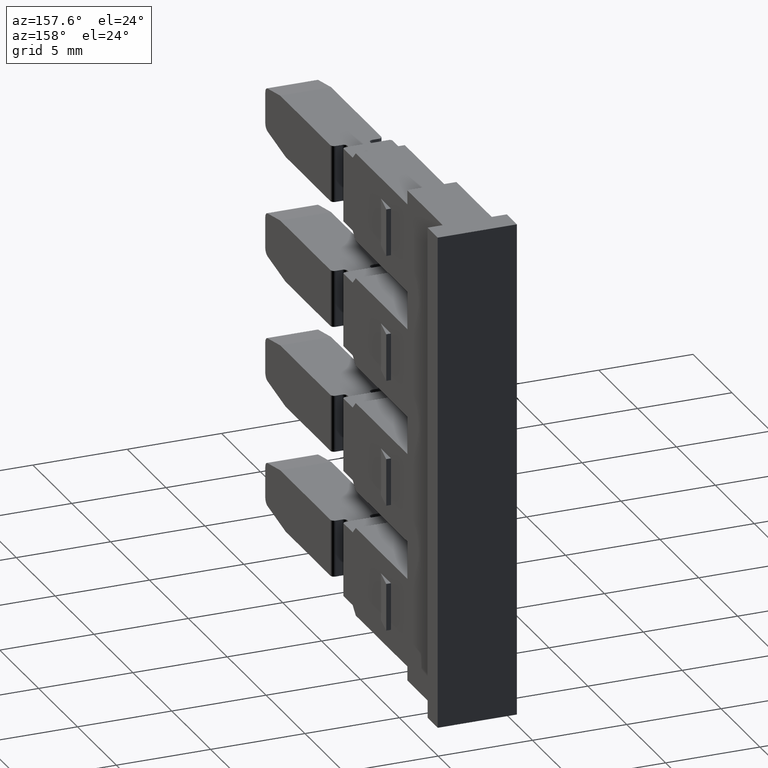
[diagram: clean part render]
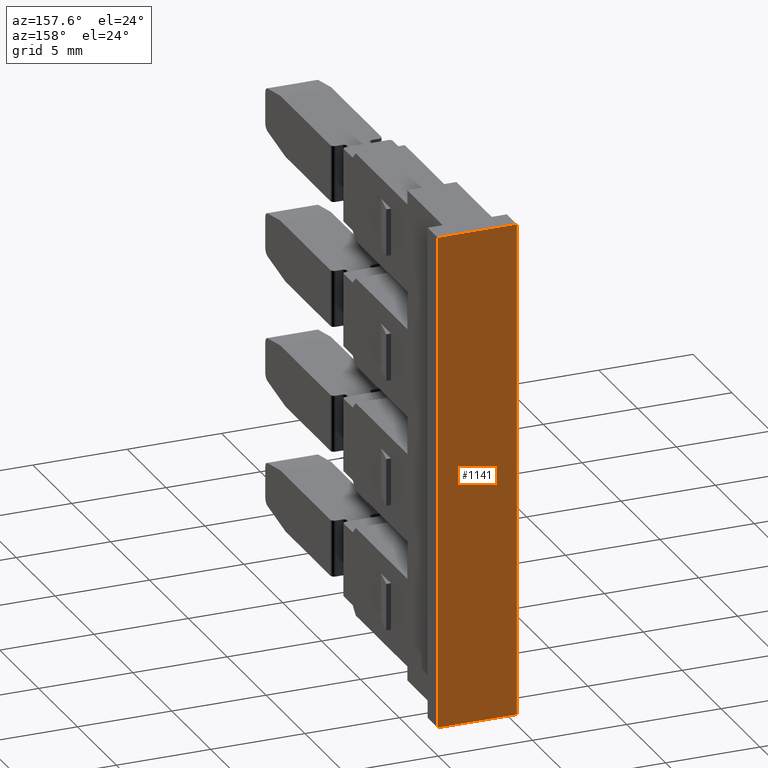
[diagram: same view with one face highlighted and labeled with its STEP entity id]
A machine part, auxiliary view. The second image highlights one B-rep face of the part: STEP entity #1141.
In plain terms, the highlighted planar face has unit normal (-0, -1, -0).
Its self-contained STEP definition (entity closure, byte-faithful):
#82 = VECTOR ( 'NONE', #2372, 1000.000000000000000 ) ;
#172 = VECTOR ( 'NONE', #2658, 1000.000000000000000 ) ;
#190 = VECTOR ( 'NONE', #2712, 1000.000000000000200 ) ;
#206 = VECTOR ( 'NONE', #2605, 1000.000000000000000 ) ;
#561 = AXIS2_PLACEMENT_3D ( 'NONE', #3991, #3969, #3955 ) ;
#753 = EDGE_CURVE ( 'NONE', #1697, #1682, #2326, .T. ) ;
#835 = EDGE_CURVE ( 'NONE', #1761, #1682, #2631, .T. ) ;
#843 = EDGE_CURVE ( 'NONE', #1761, #1791, #2616, .T. ) ;
#869 = EDGE_CURVE ( 'NONE', #1697, #1791, #2686, .T. ) ;
#1141 = ADVANCED_FACE ( 'NONE', ( #3975 ), #3957, .F. ) ;
#1682 = VERTEX_POINT ( 'NONE', #4762 ) ;
#1697 = VERTEX_POINT ( 'NONE', #4729 ) ;
#1761 = VERTEX_POINT ( 'NONE', #4808 ) ;
#1791 = VERTEX_POINT ( 'NONE', #4892 ) ;
#1920 = EDGE_LOOP ( 'NONE', ( #2806, #2818, #2809, #2857 ) ) ;
#2326 = LINE ( 'NONE', #2395, #82 ) ;
#2372 = DIRECTION ( 'NONE',  ( -5.379506530252374700E-033, -5.672277992797063800E-028, 1.000000000000000000 ) ) ;
#2395 = CARTESIAN_POINT ( 'NONE',  ( 1394.182440319829500, 1077.957091196377200, 63.60600222243470400 ) ) ;
#2599 = CARTESIAN_POINT ( 'NONE',  ( 1394.182440319829500, 1077.957091196374900, 9.800000000002389900 ) ) ;
#2605 = DIRECTION ( 'NONE',  ( 0.9999999999550282000, -9.483855921954774300E-006, 1.714874837315600700E-015 ) ) ;
#2616 = LINE ( 'NONE', #2651, #172 ) ;
#2631 = LINE ( 'NONE', #2599, #206 ) ;
#2651 = CARTESIAN_POINT ( 'NONE',  ( 1389.982440319639900, 1077.957131028572100, 63.60600222243470400 ) ) ;
#2658 = DIRECTION ( 'NONE',  ( -5.379506506941585200E-033, 5.672277993817434100E-028, -1.000000000000000000 ) ) ;
#2686 = LINE ( 'NONE', #2688, #190 ) ;
#2688 = CARTESIAN_POINT ( 'NONE',  ( 1394.082440319833900, 1077.957092144756600, -16.49999999994241400 ) ) ;
#2712 = DIRECTION ( 'NONE',  ( -0.9999999999550282000, 9.483856143999501200E-006, -1.734723475820503000E-015 ) ) ;
#2806 = ORIENTED_EDGE ( 'NONE', *, *, #835, .T. ) ;
#2809 = ORIENTED_EDGE ( 'NONE', *, *, #869, .T. ) ;
#2818 = ORIENTED_EDGE ( 'NONE', *, *, #753, .F. ) ;
#2857 = ORIENTED_EDGE ( 'NONE', *, *, #843, .F. ) ;
#3955 = DIRECTION ( 'NONE',  ( 0.9999999999550282000, -9.483855916345691600E-006, 0.0000000000000000000 ) ) ;
#3957 = PLANE ( 'NONE',  #561 ) ;
#3969 = DIRECTION ( 'NONE',  ( -9.483855916345693300E-006, -0.9999999999550283100, -5.672277993052155700E-028 ) ) ;
#3975 = FACE_OUTER_BOUND ( 'NONE', #1920, .T. ) ;
#3991 = CARTESIAN_POINT ( 'NONE',  ( 1388.404219510060100, 1077.957145996190800, 63.60600222243470400 ) ) ;
#4729 = CARTESIAN_POINT ( 'NONE',  ( 1394.182440319829500, 1077.957091196371000, -16.49999999994241400 ) ) ;
#4762 = CARTESIAN_POINT ( 'NONE',  ( 1394.182440319829500, 1077.957091196374900, 9.800000000002389900 ) ) ;
#4808 = CARTESIAN_POINT ( 'NONE',  ( 1389.982440319639900, 1077.957131028569800, 9.800000000002381000 ) ) ;
#4892 = CARTESIAN_POINT ( 'NONE',  ( 1389.982440319639900, 1077.957131028566700, -16.49999999994242100 ) ) ;